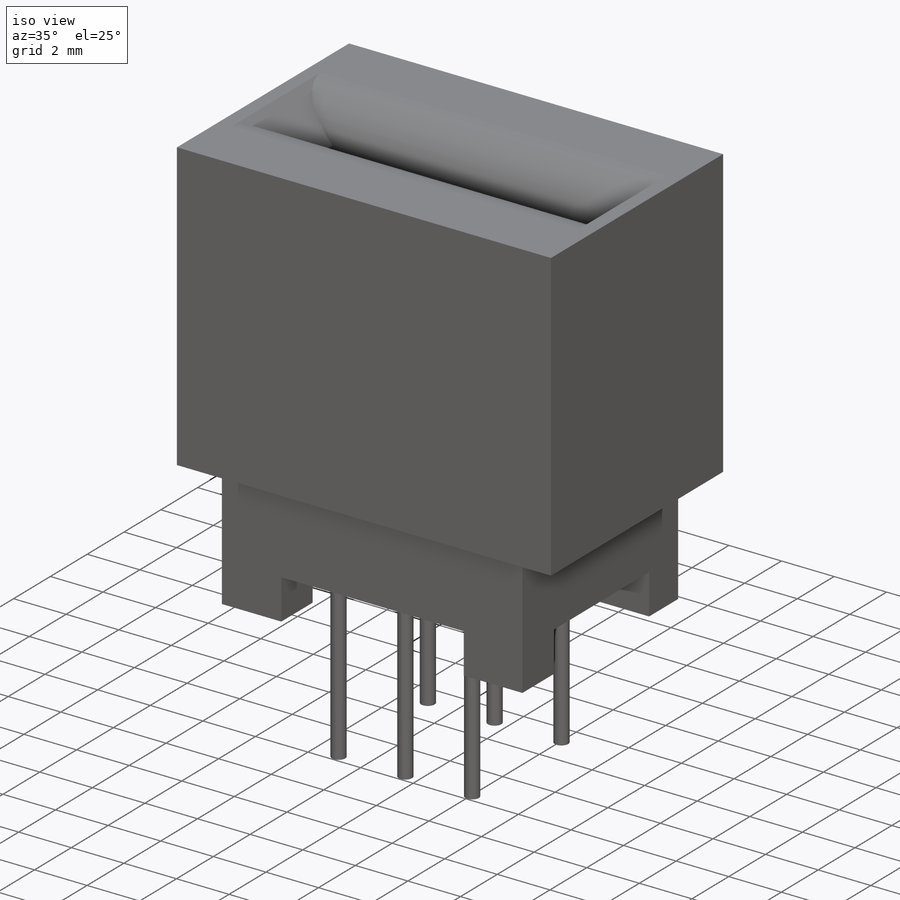
[diagram: iso view]
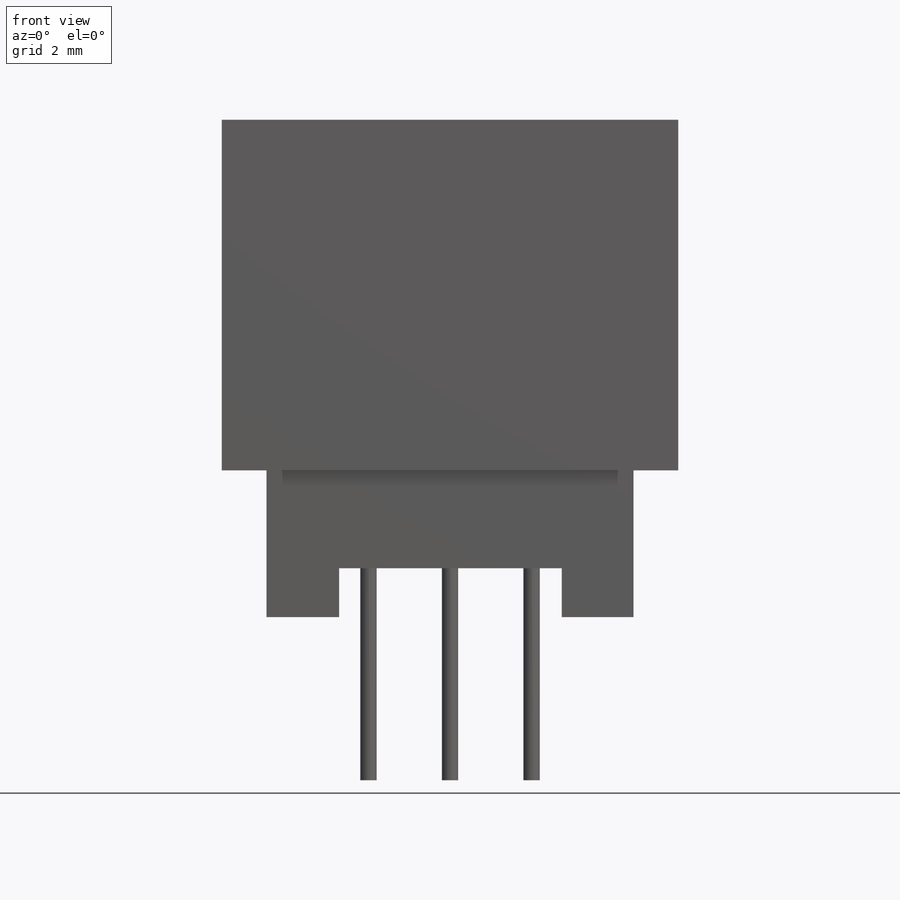
[diagram: front view]
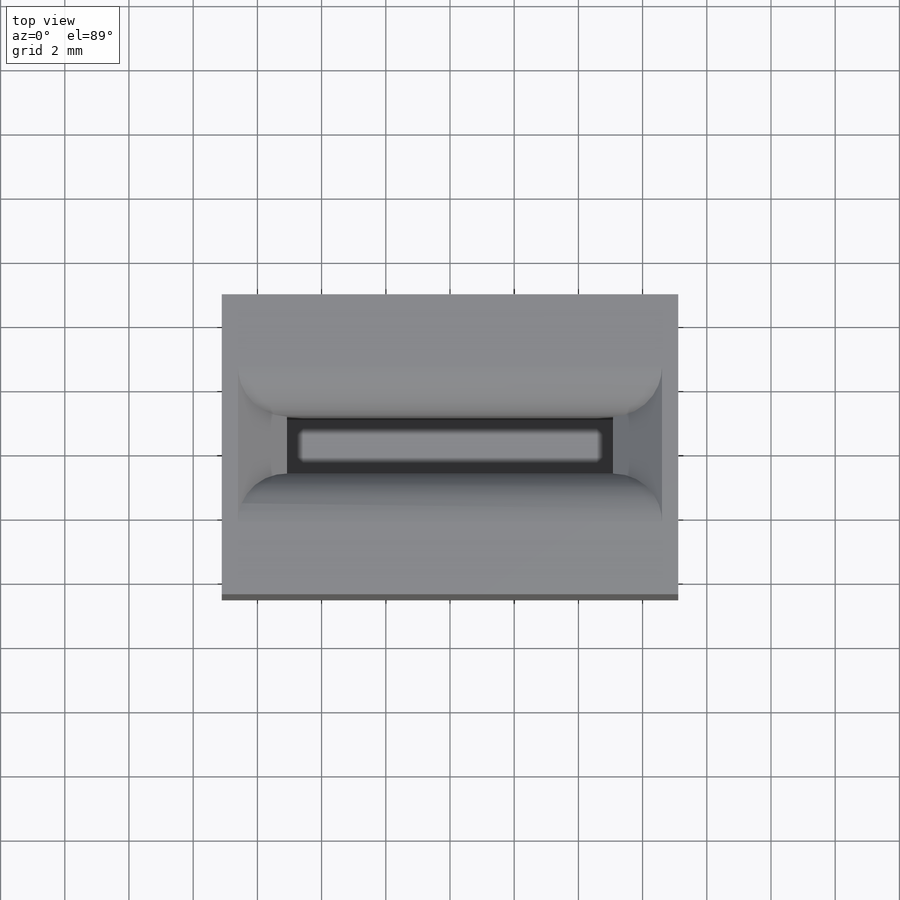
[diagram: top view]
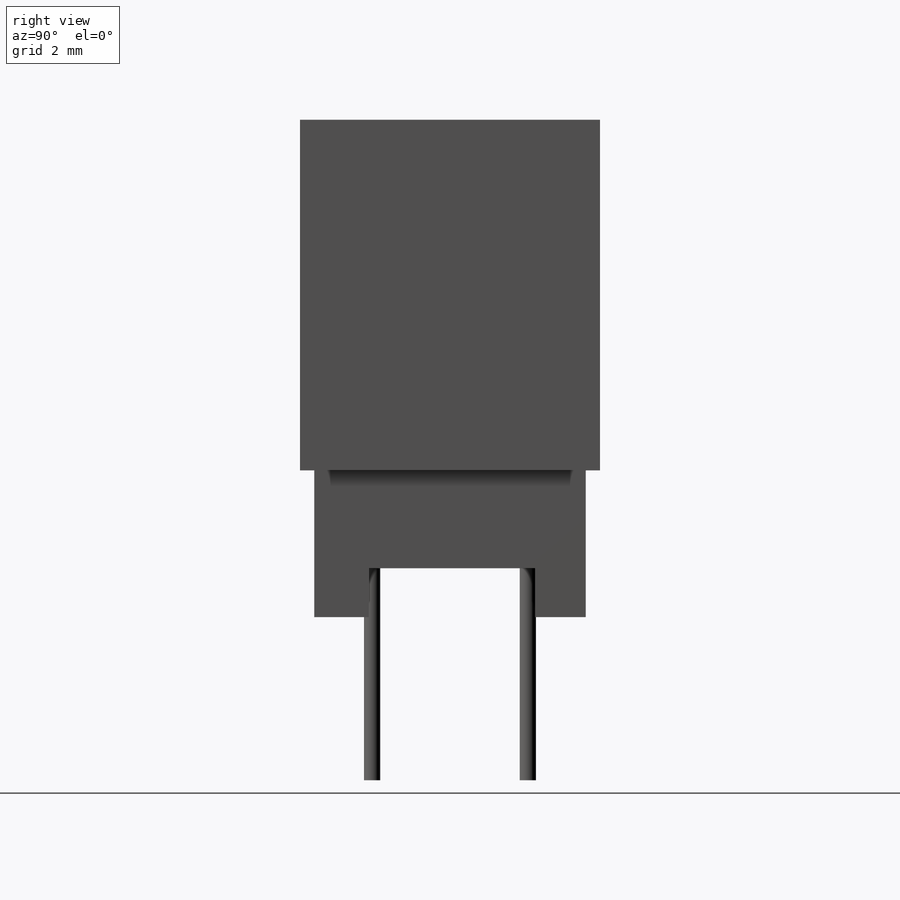
[diagram: right view]
SOLIDWORKS PART (.sldprt)
format: sldprt  version: not decoded by parser v0  size: 221,696 bytes
history: native  units: mm
features: sketch x5, extrude x4, material x1, pattern_linear x1, cut_extrude x1, chamfer x1, fillet x1 (+16 scaffold rows collapsed)
feature tree (30):
  scaffold x16  (default folders/planes/origin — collapsed)
  material  "Material <not specified>"
  sketch  "Sketch1"  dims[D1=9.3472mm D2=14.224mm]
  extrude  "Boss-Extrude1"  Depth=10.922mm
  sketch  "Sketch2"  dims[D1=11.43mm]
  extrude  "Boss-Extrude2"  Depth=3.048mm
  sketch  "Sketch3"
  extrude  "Boss-Extrude3"  Depth=1.524mm
  sketch  "Sketch4"  dims[D3=0.508mm D1=2.54mm D2=2.4257mm]
  extrude  "Boss-Extrude4"  Depth=6.604mm
  pattern_linear  "LPattern1"  Count1=3 Count2=2 Spacing1=2.54mm Spacing2=4.8514mm
  sketch  "Sketch5"  dims[D1=10.16mm D2=1.778mm]
  cut_extrude  "Cut-Extrude1"  Depth=7.493mm
  chamfer  "Chamfer1"  Distance=1.524mm Angle=45deg
  fillet  "Fillet1"  Radius=1.524mm
decode coverage: 12 of 13 modeling features carry decoded parameters
note: suppression state not decoded; provenance and decode notes live in map.json
